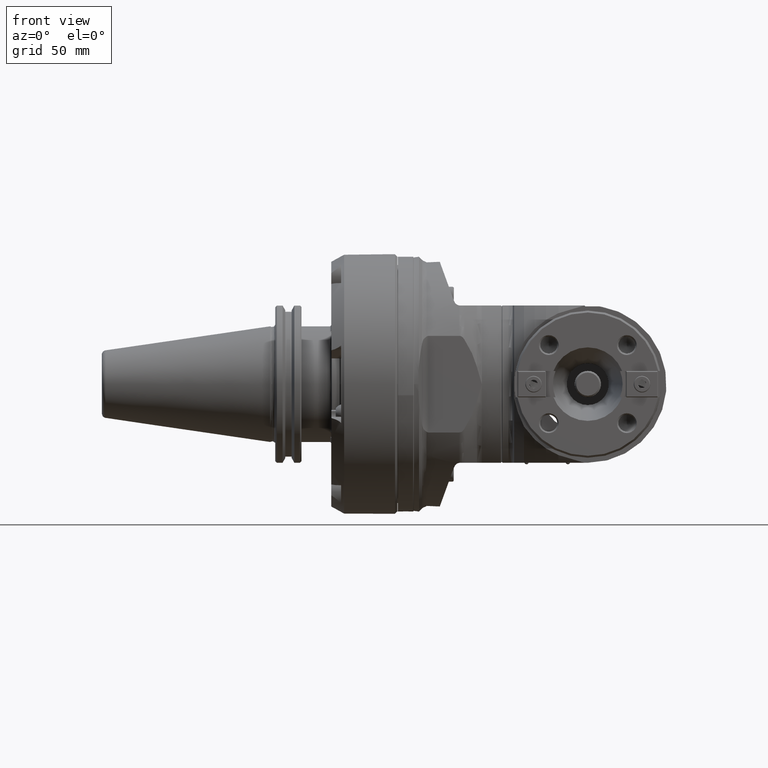
[diagram: clean part render]
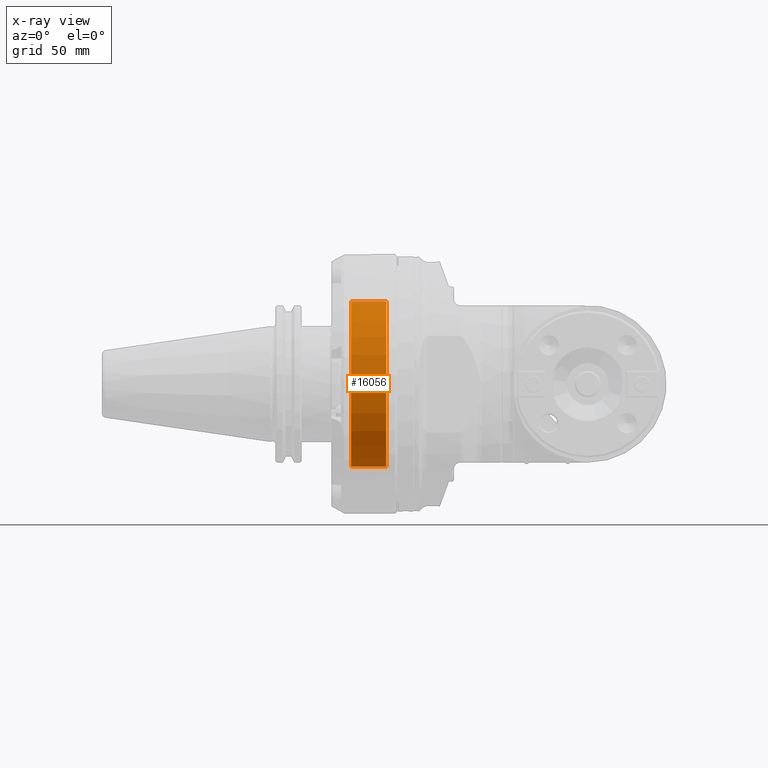
[diagram: x-ray — body ghosted, one internal face saturated and labeled with its STEP entity id]
A machine part, front view, then the same camera in x-ray: the body is ghosted and one INTERNAL B-rep face — a face not visible from any outside direction — is saturated and labeled: STEP entity #16056.
In plain terms, the highlighted cylindrical surface (bore or boss wall) has radius 50 mm, axis along (1, 0, 0).
Its self-contained STEP definition (entity closure, byte-faithful):
#1286=FACE_OUTER_BOUND('',#2167,.T.);
#2167=EDGE_LOOP('',(#10847,#10848,#10849,#10850,#10851,#10852,#10853,#10854,
#10855));
#3087=LINE('',#23309,#4310);
#3136=LINE('',#23691,#4359);
#3234=LINE('',#24135,#4457);
#4310=VECTOR('',#18768,5.5);
#4359=VECTOR('',#19011,5.5);
#4457=VECTOR('',#19379,50.);
#5539=CIRCLE('',#17047,50.);
#5673=CIRCLE('',#17273,50.);
#5674=CIRCLE('',#17274,50.);
#5675=CIRCLE('',#17276,50.);
#5676=CIRCLE('',#17277,50.);
#6317=VERTEX_POINT('',#23293);
#6324=VERTEX_POINT('',#23307);
#6325=VERTEX_POINT('',#23311);
#6402=VERTEX_POINT('',#23690);
#6525=VERTEX_POINT('',#24126);
#6526=VERTEX_POINT('',#24127);
#6527=VERTEX_POINT('',#24132);
#7923=EDGE_CURVE('',#6317,#6324,#3087,.T.);
#7924=EDGE_CURVE('',#6317,#6325,#5539,.T.);
#8046=EDGE_CURVE('',#6402,#6325,#3136,.T.);
#8230=EDGE_CURVE('',#6525,#6526,#5673,.T.);
#8232=EDGE_CURVE('',#6526,#6525,#5674,.T.);
#8233=EDGE_CURVE('',#6402,#6527,#5675,.T.);
#8234=EDGE_CURVE('',#6527,#6324,#5676,.T.);
#8235=EDGE_CURVE('',#6527,#6525,#3234,.T.);
#10847=ORIENTED_EDGE('',*,*,#8233,.F.);
#10848=ORIENTED_EDGE('',*,*,#8046,.T.);
#10849=ORIENTED_EDGE('',*,*,#7924,.F.);
#10850=ORIENTED_EDGE('',*,*,#7923,.T.);
#10851=ORIENTED_EDGE('',*,*,#8234,.F.);
#10852=ORIENTED_EDGE('',*,*,#8235,.T.);
#10853=ORIENTED_EDGE('',*,*,#8232,.F.);
#10854=ORIENTED_EDGE('',*,*,#8230,.F.);
#10855=ORIENTED_EDGE('',*,*,#8235,.F.);
#14917=CYLINDRICAL_SURFACE('',#17275,50.);
#16056=ADVANCED_FACE('',(#1286),#14917,.F.);
#17047=AXIS2_PLACEMENT_3D('',#23312,#18771,#18772);
#17273=AXIS2_PLACEMENT_3D('',#24128,#19368,#19369);
#17274=AXIS2_PLACEMENT_3D('',#24130,#19371,#19372);
#17275=AXIS2_PLACEMENT_3D('',#24131,#19373,#19374);
#17276=AXIS2_PLACEMENT_3D('',#24133,#19375,#19376);
#17277=AXIS2_PLACEMENT_3D('',#24134,#19377,#19378);
#18768=DIRECTION('',(-1.,0.,0.));
#18771=DIRECTION('center_axis',(1.,0.,0.));
#18772=DIRECTION('ref_axis',(0.,0.992773891679269,-0.119999999999996));
#19011=DIRECTION('',(1.,0.,0.));
#19368=DIRECTION('center_axis',(-1.,0.,0.));
#19369=DIRECTION('ref_axis',(0.,0.,1.));
#19371=DIRECTION('center_axis',(-1.,0.,0.));
#19372=DIRECTION('ref_axis',(0.,0.,1.));
#19373=DIRECTION('center_axis',(1.,0.,0.));
#19374=DIRECTION('ref_axis',(0.,0.,1.));
#19375=DIRECTION('center_axis',(1.,0.,0.));
#19376=DIRECTION('ref_axis',(0.,0.992773891679269,0.119999999999996));
#19377=DIRECTION('center_axis',(1.,0.,0.));
#19378=DIRECTION('ref_axis',(0.,0.992773891679269,0.119999999999996));
#19379=DIRECTION('',(1.,0.,0.));
#23293=CARTESIAN_POINT('',(11.5,49.63869458396,-6.));
#23307=CARTESIAN_POINT('',(6.,49.63869458396,-6.));
#23309=CARTESIAN_POINT('',(11.5,49.63869458396,-6.));
#23311=CARTESIAN_POINT('',(11.5,49.63869458396,6.));
#23312=CARTESIAN_POINT('Origin',(11.5,0.,0.));
#23690=CARTESIAN_POINT('',(6.,49.63869458396,6.));
#23691=CARTESIAN_POINT('',(6.,49.63869458396,6.));
#24126=CARTESIAN_POINT('',(27.26794919243,0.,-50.));
#24127=CARTESIAN_POINT('',(27.2679491924314,-6.12323399573647E-15,49.9999999999976));
#24128=CARTESIAN_POINT('Origin',(27.26794919243,0.,0.));
#24130=CARTESIAN_POINT('Origin',(27.26794919243,0.,0.));
#24131=CARTESIAN_POINT('Origin',(17.5,0.,0.));
#24132=CARTESIAN_POINT('',(6.,6.12323399573677E-15,-50.));
#24133=CARTESIAN_POINT('Origin',(6.,0.,0.));
#24134=CARTESIAN_POINT('Origin',(6.,0.,0.));
#24135=CARTESIAN_POINT('',(17.5,6.12323399573677E-15,-50.));